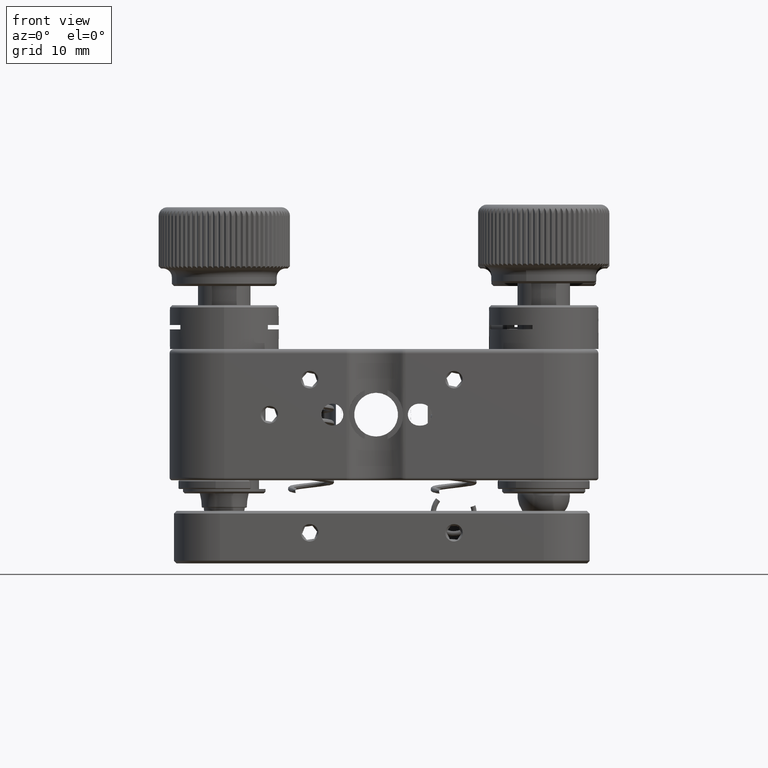
[diagram: clean part render]
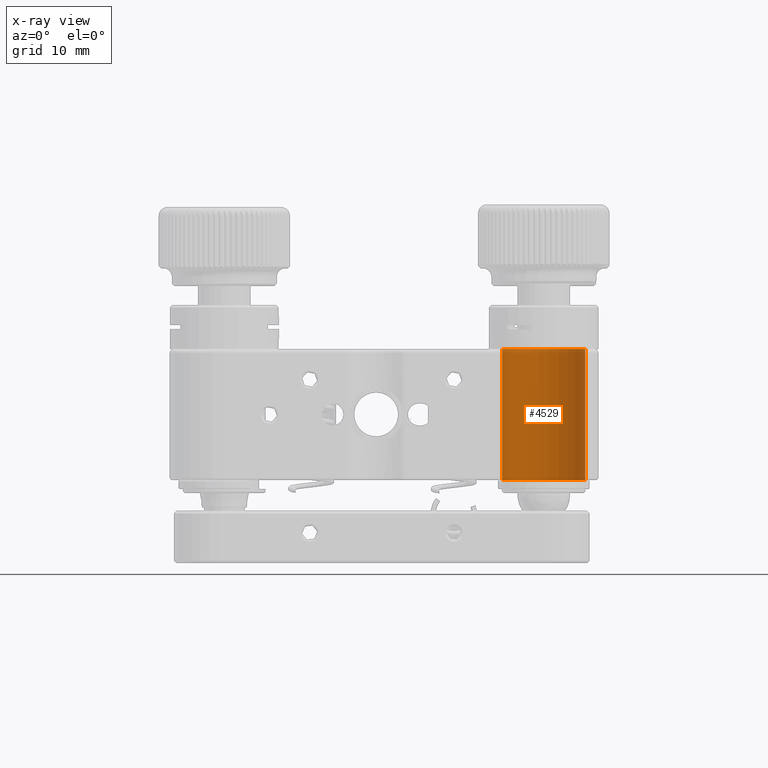
[diagram: x-ray — body ghosted, one internal face saturated and labeled with its STEP entity id]
A machine part, front view, then the same camera in x-ray: the body is ghosted and one INTERNAL B-rep face — a face not visible from any outside direction — is saturated and labeled: STEP entity #4529.
In plain terms, the highlighted cylindrical surface (partial cylindrical patch) has radius 4.75 mm, axis along (-0, 0, -1).
Its self-contained STEP definition (entity closure, byte-faithful):
#4529 = ADVANCED_FACE ( 'NONE', ( #14341 ), #47554, .T. ) ;
#4815 = DIRECTION ( 'NONE',  ( -0.9999922872465877299, 0.003927524326836395567, 0.000000000000000000 ) ) ;
#5573 = LINE ( 'NONE', #43654, #10861 ) ;
#5864 = VECTOR ( 'NONE', #40917, 1000.000000000000000 ) ;
#5868 = VERTEX_POINT ( 'NONE', #18777 ) ;
#5960 = EDGE_LOOP ( 'NONE', ( #35228, #15300, #20633, #49534 ) ) ;
#7740 = LINE ( 'NONE', #53207, #5864 ) ;
#7772 = CARTESIAN_POINT ( 'NONE',  ( 18.25000000000000000, 18.24999999999998934, -7.500000000000000000 ) ) ;
#8198 = CIRCLE ( 'NONE', #20450, 4.750000000000000000 ) ;
#9621 = DIRECTION ( 'NONE',  ( -0.9999922872465877299, 0.003927524326836395567, 0.000000000000000000 ) ) ;
#10861 = VECTOR ( 'NONE', #31181, 1000.000000000000000 ) ;
#13149 = DIRECTION ( 'NONE',  ( -1.774750517403712682E-32, 3.949628969160787774E-32, -1.000000000000000000 ) ) ;
#14341 = FACE_OUTER_BOUND ( 'NONE', #5960, .T. ) ;
#15300 = ORIENTED_EDGE ( 'NONE', *, *, #45843, .T. ) ;
#18777 = CARTESIAN_POINT ( 'NONE',  ( 22.99996336442129063, 18.23134425944751413, -7.500000000000000000 ) ) ;
#19774 = DIRECTION ( 'NONE',  ( -1.774750517403712682E-32, 3.949628969160787774E-32, -1.000000000000000000 ) ) ;
#20450 = AXIS2_PLACEMENT_3D ( 'NONE', #7772, #19774, #31757 ) ;
#20633 = ORIENTED_EDGE ( 'NONE', *, *, #45512, .F. ) ;
#21365 = VERTEX_POINT ( 'NONE', #36502 ) ;
#24715 = AXIS2_PLACEMENT_3D ( 'NONE', #25521, #42094, #4815 ) ;
#25521 = CARTESIAN_POINT ( 'NONE',  ( 18.25000000000000000, 18.24999999999998934, -9.000000000000001776 ) ) ;
#30954 = VERTEX_POINT ( 'NONE', #42732 ) ;
#31181 = DIRECTION ( 'NONE',  ( -1.774750517403712682E-32, 3.949628969160787774E-32, -1.000000000000000000 ) ) ;
#31757 = DIRECTION ( 'NONE',  ( -0.9999922872465877299, 0.003927524326836395567, 0.000000000000000000 ) ) ;
#31853 = EDGE_CURVE ( 'NONE', #21365, #30954, #7740, .T. ) ;
#34211 = AXIS2_PLACEMENT_3D ( 'NONE', #46077, #13149, #9621 ) ;
#35228 = ORIENTED_EDGE ( 'NONE', *, *, #47859, .T. ) ;
#36502 = CARTESIAN_POINT ( 'NONE',  ( 13.50003663557870759, 18.26865574055246100, 7.499905258841164546 ) ) ;
#38007 = VERTEX_POINT ( 'NONE', #53418 ) ;
#40917 = DIRECTION ( 'NONE',  ( -1.774750517403712682E-32, 3.949628969160787774E-32, -1.000000000000000000 ) ) ;
#42094 = DIRECTION ( 'NONE',  ( -1.774750517403712682E-32, 3.949628969160787774E-32, -1.000000000000000000 ) ) ;
#42732 = CARTESIAN_POINT ( 'NONE',  ( 13.50003663557870759, 18.26865574055246100, -7.500000000000000000 ) ) ;
#43654 = CARTESIAN_POINT ( 'NONE',  ( 22.99996336442129063, 18.23134425944751413, -9.000000000000001776 ) ) ;
#45512 = EDGE_CURVE ( 'NONE', #30954, #5868, #8198, .T. ) ;
#45843 = EDGE_CURVE ( 'NONE', #38007, #5868, #5573, .T. ) ;
#46077 = CARTESIAN_POINT ( 'NONE',  ( 18.25000000000000000, 18.24999999999998934, 7.499905258841164546 ) ) ;
#47554 = CYLINDRICAL_SURFACE ( 'NONE', #24715, 4.750000000000000000 ) ;
#47859 = EDGE_CURVE ( 'NONE', #21365, #38007, #50730, .T. ) ;
#49534 = ORIENTED_EDGE ( 'NONE', *, *, #31853, .F. ) ;
#50730 = CIRCLE ( 'NONE', #34211, 4.750000000000000000 ) ;
#53207 = CARTESIAN_POINT ( 'NONE',  ( 13.50003663557870759, 18.26865574055246100, -9.000000000000001776 ) ) ;
#53418 = CARTESIAN_POINT ( 'NONE',  ( 22.99996336442129063, 18.23134425944751413, 7.499905258841164546 ) ) ;